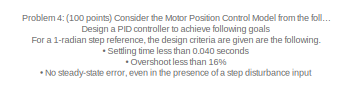
[diagram: root canvas - part 1/3, top left region]
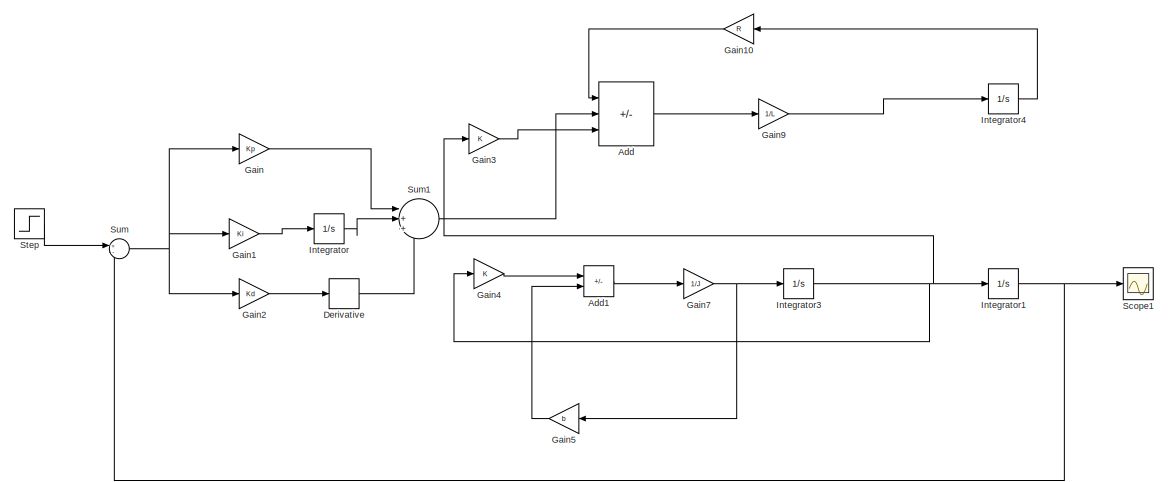
[diagram: root canvas - part 2/3, bottom center region]
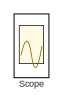
[diagram: root canvas - part 3/3, middle right region]
MODEL slx_2210ae8189b1
KIND model
CONFIG AbsTol = auto
CONFIG EnableMultiTasking = off
CONFIG FixedStep = auto
CONFIG MaxStep = auto
CONFIG MinStep = auto
CONFIG RelTol = 1e-3
CONFIG SampleTimeConstraint = Unconstrained
CONFIG Solver = VariableStepAuto
CONFIG SolverName = VariableStepAuto
CONFIG StartTime = 0.0
CONFIG StopTime = 10.0
WORKSPACE source: mxarray member
WORKSPACE J: Simulink.Parameter (value not decoded)
WORKSPACE K: Simulink.Parameter (value not decoded)
WORKSPACE Kd: Simulink.Parameter (value not decoded)
WORKSPACE Ki: Simulink.Parameter (value not decoded)
WORKSPACE Kp: Simulink.Parameter (value not decoded)
WORKSPACE L: Simulink.Parameter (value not decoded)
WORKSPACE R: Simulink.Parameter (value not decoded)
WORKSPACE b: Simulink.Parameter (value not decoded)
BLOCK [Sum] Add
  IconShape = rectangular
  Inputs = -+-
  Ports = [3, 1]
BLOCK [Sum] Add1
  IconShape = rectangular
  Inputs = +-
  Ports = [2, 1]
BLOCK [Derivative] Derivative
BLOCK [Gain] Gain
  Gain = Kp
BLOCK [Gain] Gain1
  Gain = Ki
BLOCK [Gain] Gain10
  Gain = R
  NameLocation = top
BLOCK [Gain] Gain2
  Gain = Kd
BLOCK [Gain] Gain3
  Gain = K
BLOCK [Gain] Gain4
  Gain = K
BLOCK [Gain] Gain5
  Gain = b
  NameLocation = top
BLOCK [Gain] Gain7
  Gain = 1/J
BLOCK [Gain] Gain9
  Gain = 1/L
BLOCK [Integrator] Integrator
  Ports = [1, 1]
BLOCK [Integrator] Integrator1
  Ports = [1, 1]
BLOCK [Integrator] Integrator3
  Ports = [1, 1]
BLOCK [Integrator] Integrator4
  Ports = [1, 1]
BLOCK [Scope] Scope
  Commented = on
  Floating = off
  NumInputPorts = 2
  Ports = [2]
  ScopeSpecificationString = Simulink.scopes.TimeScopeBlockCfg('CurrentConfiguration', extmgr.ConfigurationSet(extmgr.Configuration('Core','General UI',true),extmgr.Configuration('Core','Source UI',true),extmgr.Configuration('Sources','WiredSimulink',true),extmgr.Configuration('Visuals','Time Domain',true,'SerializedDisplays',{struct('MinYLimReal','-0.0000000000000000033','MaxYLimReal','0.0000000000000000004','YLabelReal','',...<+1461ch>
BLOCK [Scope] Scope1
  Floating = off
  NumInputPorts = 1
  Ports = [1]
  ScopeSpecificationString = Simulink.scopes.TimeScopeBlockCfg('CurrentConfiguration', extmgr.ConfigurationSet(extmgr.Configuration('Core','General UI',true),extmgr.Configuration('Core','Source UI',true),extmgr.Configuration('Sources','WiredSimulink',true,'DataLoggingVariableName','ScopeData1'),extmgr.Configuration('Visuals','Time Domain',true,'SerializedDisplays',{struct('MinYLimReal','-0.0000000000000000033','MaxYLimReal','...<+1511ch>
BLOCK [Step] Step
  SampleTime = 0
BLOCK [Sum] Sum
  Inputs = +-
  Ports = [2, 1]
BLOCK [Sum] Sum1
  Inputs = |+++
  Ports = [3, 1]
ANNOTATION (root): Problem 4: (100 points) Consider the Motor Position Control Model from the following link https://ctms.engin.umich.edu/CTMS/index.php?example=MotorPosition&section=SimulinkModeling Build this system in Simulink. Design a PID controller to achieve following goals For a 1-radian step reference, the design criteria are given are the following. • Settling time less than 0.040 seconds • Overshoot less ...<+166ch>
LINE Add1:1 -> Gain7:1
LINE Add:1 -> Gain9:1
LINE Derivative:1 -> Sum1:3
LINE Gain10:1 -> Add:1
LINE Gain1:1 -> Integrator:1
LINE Gain2:1 -> Derivative:1
LINE Gain3:1 -> Add:3
LINE Gain4:1 -> Add1:1
LINE Gain5:1 -> Add1:2
NET Gain7:1 -> Gain5:1, Integrator3:1
LINE Gain9:1 -> Integrator4:1
LINE Gain:1 -> Sum1:1
NET Integrator1:1 -> Scope1:1, Sum:2
NET Integrator3:1 -> Gain3:1, Gain4:1, Integrator1:1
LINE Integrator4:1 -> Gain10:1
LINE Integrator:1 -> Sum1:2
LINE Step:1 -> Sum:1
LINE Sum1:1 -> Add:2
NET Sum:1 -> Gain1:1, Gain2:1, Gain:1
note: NET lines group one-source signal fan-out (src -> all destinations, sorted); 1:1 wires keep LINE
